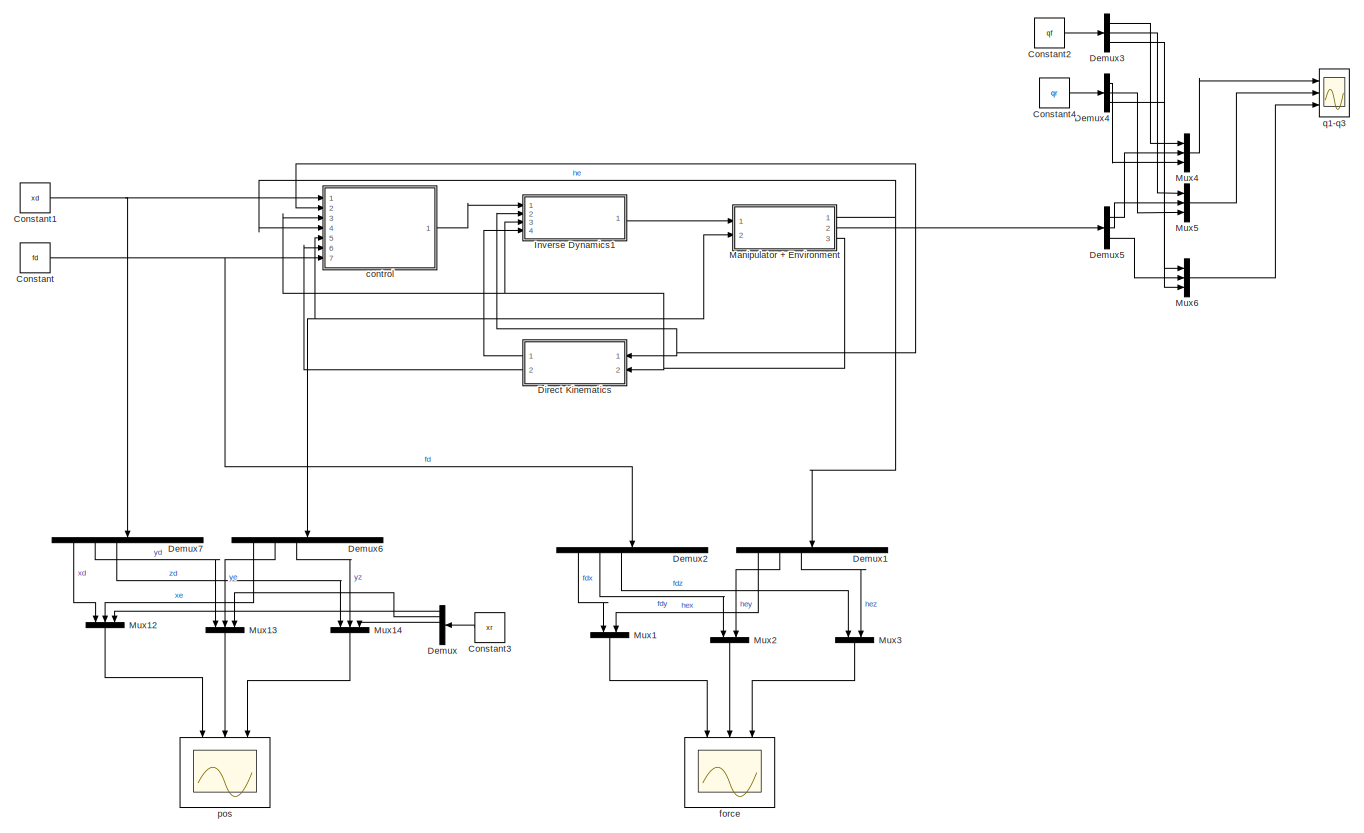
[diagram: root canvas - part 1/1, most of the canvas]
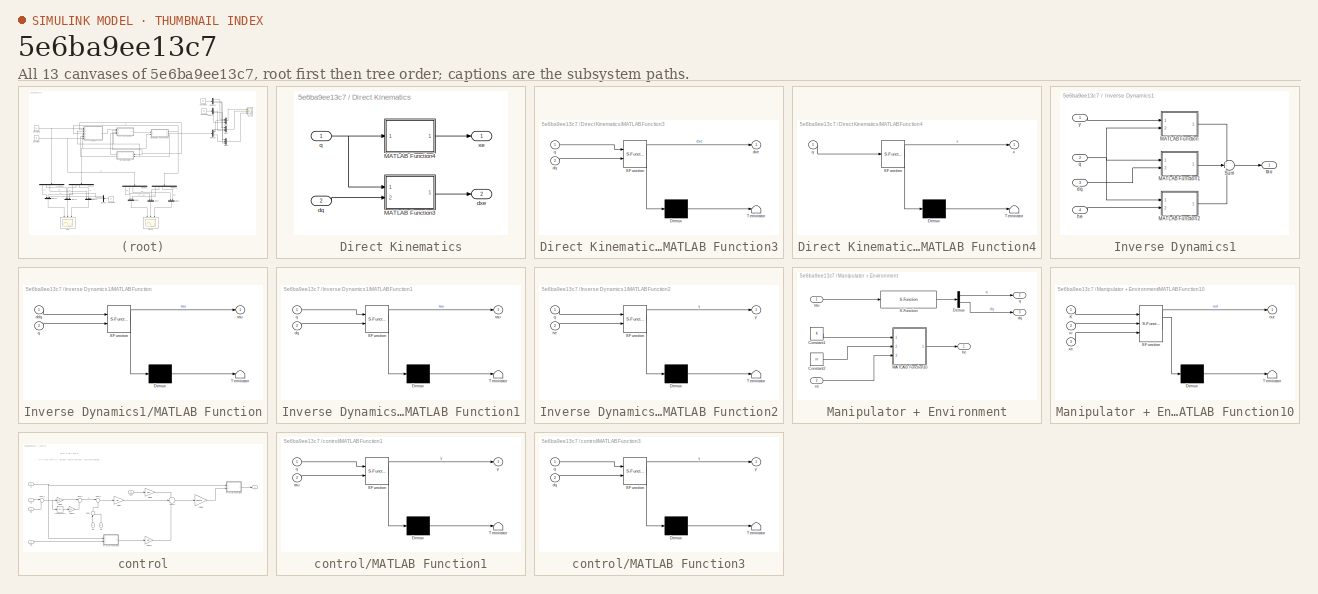
[diagram: thumbnail index - all 13 canvases of the model, root first then tree order]
MODEL slx_5e6ba9ee13c7
KIND model
CONFIG AbsTol = auto
CONFIG EnableMultiTasking = off
CONFIG FixedStep = Ts
CONFIG MaxStep = auto
CONFIG MinStep = auto
CONFIG RelTol = 1e-3
CONFIG SampleTimeConstraint = Unconstrained
CONFIG SolverName = FixedStepAuto
CONFIG StartTime = 0.0
CONFIG StopTime = 10
BLOCK [Constant] Constant
  Value = fd
BLOCK [Constant] Constant1
  Value = xd
BLOCK [Constant] Constant2
  Value = qf
BLOCK [Constant] Constant3
  NameLocation = top
  Value = xr
BLOCK [Constant] Constant4
  Value = qr
BLOCK [Demux] Demux
  NameLocation = top
  Outputs = 6
  Ports = [1, 6]
BLOCK [Demux] Demux1
  NameLocation = left
  Outputs = 6
  Ports = [1, 6]
BLOCK [Demux] Demux2
  NameLocation = left
  Outputs = 6
  Ports = [1, 6]
BLOCK [Demux] Demux3
  Outputs = 3
  Ports = [1, 3]
BLOCK [Demux] Demux4
  Outputs = 3
  Ports = [1, 3]
BLOCK [Demux] Demux5
  Outputs = myRobot.N
  Ports = [1, 3]
BLOCK [Demux] Demux6
  NameLocation = left
  Outputs = 6
  Ports = [1, 6]
BLOCK [Demux] Demux7
  NameLocation = left
  Outputs = 6
  Ports = [1, 6]
BLOCK [SubSystem] Direct Kinematics
  Ports = [2, 2]
  RequestExecContextInheritance = off
BLOCK [SubSystem] Direct Kinematics/MATLAB Function3
  ErrorFcn = Stateflow.Translate.translate
  PermitHierarchicalResolution = ExplicitOnly
  Ports = [2, 1]
  RequestExecContextInheritance = off
  SFBlockType = MATLAB Function
  TreatAsAtomicUnit = on
BLOCK [Demux] Direct Kinematics/MATLAB Function3/ Demux 
  Outputs = 1
  Ports = [1, 1]
BLOCK [S-Function] Direct Kinematics/MATLAB Function3/ SFunction 
  EnableBusSupport = on
  FunctionName = sf_sfun
  PortCounts = [2 2]
  Ports = [2, 2]
  SFcnIsStateOwnerBlock = off
  SFunctionDeploymentMode = off
  Tag = Stateflow S-Function 10
BLOCK [Terminator] Direct Kinematics/MATLAB Function3/ Terminator 
BLOCK [Inport] Direct Kinematics/MATLAB Function3/dq
  Port = 2
BLOCK [Outport] Direct Kinematics/MATLAB Function3/dxe
BLOCK [Inport] Direct Kinematics/MATLAB Function3/q
BLOCK [SubSystem] Direct Kinematics/MATLAB Function4
  ErrorFcn = Stateflow.Translate.translate
  PermitHierarchicalResolution = ExplicitOnly
  Ports = [1, 1]
  RequestExecContextInheritance = off
  SFBlockType = MATLAB Function
  TreatAsAtomicUnit = on
BLOCK [Demux] Direct Kinematics/MATLAB Function4/ Demux 
  Outputs = 1
  Ports = [1, 1]
BLOCK [S-Function] Direct Kinematics/MATLAB Function4/ SFunction 
  EnableBusSupport = on
  FunctionName = sf_sfun
  PortCounts = [1 2]
  Ports = [1, 2]
  SFcnIsStateOwnerBlock = off
  SFunctionDeploymentMode = off
  Tag = Stateflow S-Function 13
BLOCK [Terminator] Direct Kinematics/MATLAB Function4/ Terminator 
BLOCK [Inport] Direct Kinematics/MATLAB Function4/q
BLOCK [Outport] Direct Kinematics/MATLAB Function4/x
BLOCK [Inport] Direct Kinematics/dq
  Port = 2
BLOCK [Outport] Direct Kinematics/dxe
  Port = 2
BLOCK [Inport] Direct Kinematics/q
BLOCK [Outport] Direct Kinematics/xe
BLOCK [SubSystem] Inverse Dynamics1
  Ports = [4, 1]
  RequestExecContextInheritance = off
BLOCK [SubSystem] Inverse Dynamics1/MATLAB Function
  ErrorFcn = Stateflow.Translate.translate
  PermitHierarchicalResolution = ExplicitOnly
  Ports = [2, 1]
  RequestExecContextInheritance = off
  SFBlockType = MATLAB Function
  TreatAsAtomicUnit = on
BLOCK [Demux] Inverse Dynamics1/MATLAB Function/ Demux 
  Outputs = 1
  Ports = [1, 1]
BLOCK [S-Function] Inverse Dynamics1/MATLAB Function/ SFunction 
  EnableBusSupport = on
  FunctionName = sf_sfun
  PortCounts = [2 2]
  Ports = [2, 2]
  SFcnIsStateOwnerBlock = off
  SFunctionDeploymentMode = off
  Tag = Stateflow S-Function 18
BLOCK [Terminator] Inverse Dynamics1/MATLAB Function/ Terminator 
BLOCK [Inport] Inverse Dynamics1/MATLAB Function/ddq
BLOCK [Inport] Inverse Dynamics1/MATLAB Function/q
  Port = 2
BLOCK [Outport] Inverse Dynamics1/MATLAB Function/tau
BLOCK [SubSystem] Inverse Dynamics1/MATLAB Function1
  ErrorFcn = Stateflow.Translate.translate
  PermitHierarchicalResolution = ExplicitOnly
  Ports = [2, 1]
  RequestExecContextInheritance = off
  SFBlockType = MATLAB Function
  TreatAsAtomicUnit = on
BLOCK [Demux] Inverse Dynamics1/MATLAB Function1/ Demux 
  Outputs = 1
  Ports = [1, 1]
BLOCK [S-Function] Inverse Dynamics1/MATLAB Function1/ SFunction 
  EnableBusSupport = on
  FunctionName = sf_sfun
  PortCounts = [2 2]
  Ports = [2, 2]
  SFcnIsStateOwnerBlock = off
  SFunctionDeploymentMode = off
  Tag = Stateflow S-Function 19
BLOCK [Terminator] Inverse Dynamics1/MATLAB Function1/ Terminator 
BLOCK [Inport] Inverse Dynamics1/MATLAB Function1/dq
  Port = 2
BLOCK [Inport] Inverse Dynamics1/MATLAB Function1/q
BLOCK [Outport] Inverse Dynamics1/MATLAB Function1/tau
BLOCK [SubSystem] Inverse Dynamics1/MATLAB Function2
  ErrorFcn = Stateflow.Translate.translate
  PermitHierarchicalResolution = ExplicitOnly
  Ports = [2, 1]
  RequestExecContextInheritance = off
  SFBlockType = MATLAB Function
  TreatAsAtomicUnit = on
BLOCK [Demux] Inverse Dynamics1/MATLAB Function2/ Demux 
  Outputs = 1
  Ports = [1, 1]
BLOCK [S-Function] Inverse Dynamics1/MATLAB Function2/ SFunction 
  EnableBusSupport = on
  FunctionName = sf_sfun
  PortCounts = [2 2]
  Ports = [2, 2]
  SFcnIsStateOwnerBlock = off
  SFunctionDeploymentMode = off
  Tag = Stateflow S-Function 2
BLOCK [Terminator] Inverse Dynamics1/MATLAB Function2/ Terminator 
BLOCK [Inport] Inverse Dynamics1/MATLAB Function2/he
  Port = 2
BLOCK [Inport] Inverse Dynamics1/MATLAB Function2/q
BLOCK [Outport] Inverse Dynamics1/MATLAB Function2/y
BLOCK [Sum] Inverse Dynamics1/Sum
  Inputs = +++
  Ports = [3, 1]
BLOCK [Inport] Inverse Dynamics1/dq
  Port = 3
BLOCK [Inport] Inverse Dynamics1/he
  Port = 4
BLOCK [Inport] Inverse Dynamics1/q
  Port = 2
BLOCK [Outport] Inverse Dynamics1/tau
BLOCK [Inport] Inverse Dynamics1/y
BLOCK [SubSystem] Manipulator + Environment
  Ports = [2, 3]
  RequestExecContextInheritance = off
BLOCK [Constant] Manipulator + Environment/Constant1
  Value = K
BLOCK [Constant] Manipulator + Environment/Constant2
  Value = xr
BLOCK [Demux] Manipulator + Environment/Demux
  Outputs = 2
  Ports = [1, 2]
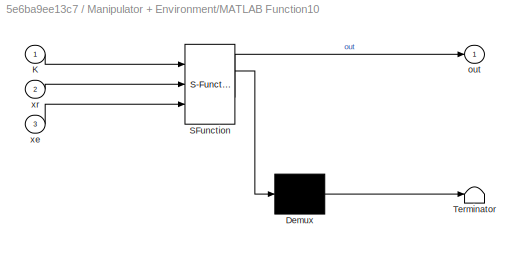
BLOCK [SubSystem] Manipulator + Environment/MATLAB Function10
  ErrorFcn = Stateflow.Translate.translate
  PermitHierarchicalResolution = ExplicitOnly
  Ports = [3, 1]
  RequestExecContextInheritance = off
  SFBlockType = MATLAB Function
  TreatAsAtomicUnit = on
BLOCK [Demux] Manipulator + Environment/MATLAB Function10/ Demux 
  Outputs = 1
  Ports = [1, 1]
BLOCK [S-Function] Manipulator + Environment/MATLAB Function10/ SFunction 
  EnableBusSupport = on
  FunctionName = sf_sfun
  PortCounts = [3 2]
  Ports = [3, 2]
  SFcnIsStateOwnerBlock = off
  SFunctionDeploymentMode = off
  Tag = Stateflow S-Function 20
BLOCK [Terminator] Manipulator + Environment/MATLAB Function10/ Terminator 
BLOCK [Inport] Manipulator + Environment/MATLAB Function10/K
BLOCK [Outport] Manipulator + Environment/MATLAB Function10/out
BLOCK [Inport] Manipulator + Environment/MATLAB Function10/xe
  Port = 3
BLOCK [Inport] Manipulator + Environment/MATLAB Function10/xr
  Port = 2
BLOCK [S-Function] Manipulator + Environment/S-Function
  EnableBusSupport = off
  FunctionName = fwd_dyn_joint_lagrangian
  Parameters = myRobot,qi,dqi
  Ports = [1, 1]
  SFcnIsStateOwnerBlock = off
  SFunctionDeploymentMode = off
BLOCK [Outport] Manipulator + Environment/dq
  Port = 3
BLOCK [Outport] Manipulator + Environment/he
BLOCK [Outport] Manipulator + Environment/q
  Port = 2
BLOCK [Inport] Manipulator + Environment/tau
BLOCK [Inport] Manipulator + Environment/xe
  Port = 2
BLOCK [Mux] Mux1
  DisplayOption = bar
  Inputs = 2
  NameLocation = left
  Ports = [2, 1]
BLOCK [Mux] Mux12
  DisplayOption = bar
  Inputs = 3
  NameLocation = left
  Ports = [3, 1]
BLOCK [Mux] Mux13
  DisplayOption = bar
  Inputs = 3
  NameLocation = left
  Ports = [3, 1]
BLOCK [Mux] Mux14
  DisplayOption = bar
  Inputs = 3
  NameLocation = left
  Ports = [3, 1]
BLOCK [Mux] Mux2
  DisplayOption = bar
  Inputs = 2
  NameLocation = left
  Ports = [2, 1]
BLOCK [Mux] Mux3
  DisplayOption = bar
  Inputs = 2
  NameLocation = left
  Ports = [2, 1]
BLOCK [Mux] Mux4
  DisplayOption = bar
  Inputs = 3
  Ports = [3, 1]
BLOCK [Mux] Mux5
  DisplayOption = bar
  Inputs = 3
  Ports = [3, 1]
BLOCK [Mux] Mux6
  DisplayOption = bar
  Inputs = 3
  Ports = [3, 1]
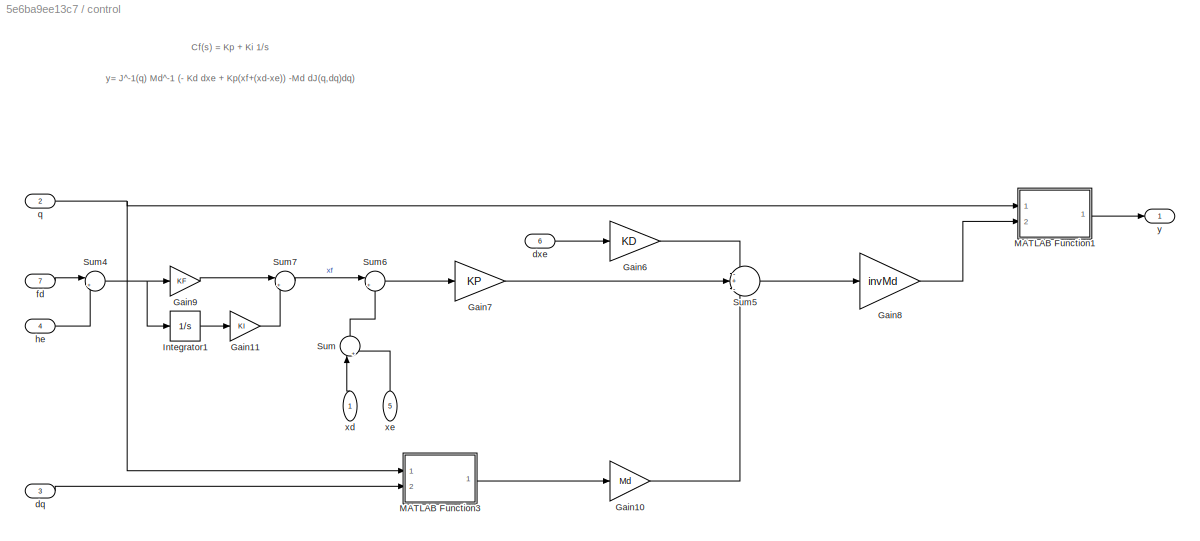
BLOCK [SubSystem] control
  Ports = [7, 1]
  RequestExecContextInheritance = off
BLOCK [Gain] control/Gain10
  Gain = Md
  Multiplication = Matrix(K*u)
BLOCK [Gain] control/Gain11
  Gain = KI
BLOCK [Gain] control/Gain6
  Gain = KD
BLOCK [Gain] control/Gain7
  Gain = KP
BLOCK [Gain] control/Gain8
  Gain = invMd
  Multiplication = Matrix(K*u)
BLOCK [Gain] control/Gain9
  Gain = KF
BLOCK [Integrator] control/Integrator1
  Ports = [1, 1]
BLOCK [SubSystem] control/MATLAB Function1
  ErrorFcn = Stateflow.Translate.translate
  PermitHierarchicalResolution = ExplicitOnly
  Ports = [2, 1]
  RequestExecContextInheritance = off
  SFBlockType = MATLAB Function
  TreatAsAtomicUnit = on
BLOCK [Demux] control/MATLAB Function1/ Demux 
  Outputs = 1
  Ports = [1, 1]
BLOCK [S-Function] control/MATLAB Function1/ SFunction 
  EnableBusSupport = on
  FunctionName = sf_sfun
  PortCounts = [2 2]
  Ports = [2, 2]
  SFcnIsStateOwnerBlock = off
  SFunctionDeploymentMode = off
  Tag = Stateflow S-Function 4
BLOCK [Terminator] control/MATLAB Function1/ Terminator 
BLOCK [Inport] control/MATLAB Function1/q
BLOCK [Inport] control/MATLAB Function1/tau
  Port = 2
BLOCK [Outport] control/MATLAB Function1/y
BLOCK [SubSystem] control/MATLAB Function3
  ErrorFcn = Stateflow.Translate.translate
  PermitHierarchicalResolution = ExplicitOnly
  Ports = [2, 1]
  RequestExecContextInheritance = off
  SFBlockType = MATLAB Function
  TreatAsAtomicUnit = on
BLOCK [Demux] control/MATLAB Function3/ Demux 
  Outputs = 1
  Ports = [1, 1]
BLOCK [S-Function] control/MATLAB Function3/ SFunction 
  EnableBusSupport = on
  FunctionName = sf_sfun
  PortCounts = [2 2]
  Ports = [2, 2]
  SFcnIsStateOwnerBlock = off
  SFunctionDeploymentMode = off
  Tag = Stateflow S-Function 5
BLOCK [Terminator] control/MATLAB Function3/ Terminator 
BLOCK [Inport] control/MATLAB Function3/dq
  Port = 2
BLOCK [Inport] control/MATLAB Function3/q
BLOCK [Outport] control/MATLAB Function3/y
BLOCK [Sum] control/Sum
  Inputs = |+-
  NameLocation = right
  Ports = [2, 1]
BLOCK [Sum] control/Sum4
  Inputs = |+-
  Ports = [2, 1]
BLOCK [Sum] control/Sum5
  Inputs = -+-
  Ports = [3, 1]
BLOCK [Sum] control/Sum6
  Inputs = |++
  Ports = [2, 1]
BLOCK [Sum] control/Sum7
  Inputs = |++
  Ports = [2, 1]
BLOCK [Inport] control/dq
  Port = 3
BLOCK [Inport] control/dxe
  Port = 6
BLOCK [Inport] control/fd
  Port = 7
BLOCK [Inport] control/he
  NameLocation = top
  Port = 4
BLOCK [Inport] control/q
  Port = 2
BLOCK [Inport] control/xd
  NameLocation = right
BLOCK [Inport] control/xe
  NameLocation = right
  Port = 5
BLOCK [Outport] control/y
BLOCK [Scope] force
  Floating = off
  NameLocation = left
  NumInputPorts = 3
  Ports = [3]
  ScopeSpecificationString = Simulink.scopes.TimeScopeBlockCfg('CurrentConfiguration', extmgr.ConfigurationSet(extmgr.Configuration('Core','General UI',true),extmgr.Configuration('Core','Source UI',true),extmgr.Configuration('Sources','WiredSimulink',true,'DataLoggingVariableName','ScopeData1'),extmgr.Configuration('Visuals','Time Domain',true,'SerializedDisplays',{struct('MinYLimReal','-0.00841','MaxYLimReal','0.00093','YLab...<+3361ch>
BLOCK [Scope] pos
  Floating = off
  NameLocation = left
  NumInputPorts = 3
  Ports = [3]
  ScopeSpecificationString = Simulink.scopes.TimeScopeBlockCfg('CurrentConfiguration', extmgr.ConfigurationSet(extmgr.Configuration('Core','General UI',true),extmgr.Configuration('Core','Source UI',true),extmgr.Configuration('Sources','WiredSimulink',true,'DataLoggingVariableName','ScopeData1'),extmgr.Configuration('Visuals','Time Domain',true,'SerializedDisplays',{struct('MinYLimReal','0.37','MaxYLimReal','0.67','YLabelReal'...<+3403ch>
BLOCK [Scope] q1-q3
  Floating = off
  NumInputPorts = 3
  Ports = [3]
  ScopeSpecificationString = Simulink.scopes.TimeScopeBlockCfg('CurrentConfiguration', extmgr.ConfigurationSet(extmgr.Configuration('Core','General UI',true),extmgr.Configuration('Core','Source UI',true),extmgr.Configuration('Sources','WiredSimulink',true,'DataLoggingVariableName','ScopeData1'),extmgr.Configuration('Visuals','Time Domain',true,'SerializedDisplays',{struct('MinYLimReal','-0.06315','MaxYLimReal','0.56836','YLab...<+2985ch>
ANNOTATION control: Cf(s) = Kp + Ki 1/s
ANNOTATION control: y= J^-1(q) Md^-1 ( - Kd dxe + Kp( xf +(xd-xe) ) -Md dJ(q,dq)dq )
NET Constant1:1 -> Demux7:1, control:1
LINE Constant2:1 -> Demux3:1
LINE Constant3:1 -> Demux:1
LINE Constant4:1 -> Demux4:1
NET Constant:1 -> Demux2:1, control:7
LINE Demux1:1 -> Mux1:2
LINE Demux1:2 -> Mux2:2
LINE Demux1:3 -> Mux3:2
LINE Demux2:1 -> Mux1:1
LINE Demux2:2 -> Mux2:1
LINE Demux2:3 -> Mux3:1
LINE Demux3:1 -> Mux4:1
LINE Demux3:2 -> Mux5:1
LINE Demux3:3 -> Mux6:1
LINE Demux4:1 -> Mux4:3
LINE Demux4:2 -> Mux5:3
LINE Demux4:3 -> Mux6:3
LINE Demux5:1 -> Mux4:2
LINE Demux5:2 -> Mux5:2
LINE Demux5:3 -> Mux6:2
LINE Demux6:1 -> Mux12:2
LINE Demux6:2 -> Mux13:2
LINE Demux6:3 -> Mux14:2
LINE Demux7:1 -> Mux12:1
LINE Demux7:2 -> Mux13:1
LINE Demux7:3 -> Mux14:1
LINE Demux:1 -> Mux12:3
LINE Demux:2 -> Mux13:3
LINE Demux:3 -> Mux14:3
LINE Direct Kinematics/MATLAB Function3:1 -> Direct Kinematics/dxe:1
LINE Direct Kinematics/MATLAB Function4:1 -> Direct Kinematics/xe:1
LINE Direct Kinematics/dq:1 -> Direct Kinematics/MATLAB Function3:2
NET Direct Kinematics/q:1 -> Direct Kinematics/MATLAB Function3:1, Direct Kinematics/MATLAB Function4:1
NET Direct Kinematics:1 -> Demux6:1, Inverse Dynamics1:4, Manipulator + Environment:2, control:5
LINE Direct Kinematics:2 -> control:6
LINE Inverse Dynamics1/MATLAB Function1:1 -> Inverse Dynamics1/Sum:2
LINE Inverse Dynamics1/MATLAB Function2:1 -> Inverse Dynamics1/Sum:3
LINE Inverse Dynamics1/MATLAB Function:1 -> Inverse Dynamics1/Sum:1
LINE Inverse Dynamics1/Sum:1 -> Inverse Dynamics1/tau:1
LINE Inverse Dynamics1/dq:1 -> Inverse Dynamics1/MATLAB Function1:2
LINE Inverse Dynamics1/he:1 -> Inverse Dynamics1/MATLAB Function2:2
NET Inverse Dynamics1/q:1 -> Inverse Dynamics1/MATLAB Function1:1, Inverse Dynamics1/MATLAB Function2:1, Inverse Dynamics1/MATLAB Function:2
LINE Inverse Dynamics1/y:1 -> Inverse Dynamics1/MATLAB Function:1
LINE Inverse Dynamics1:1 -> Manipulator + Environment:1
LINE Manipulator + Environment/Constant1:1 -> Manipulator + Environment/MATLAB Function10:1
LINE Manipulator + Environment/Constant2:1 -> Manipulator + Environment/MATLAB Function10:2
LINE Manipulator + Environment/Demux:1 -> Manipulator + Environment/q:1
LINE Manipulator + Environment/Demux:2 -> Manipulator + Environment/dq:1
LINE Manipulator + Environment/MATLAB Function10:1 -> Manipulator + Environment/he:1
LINE Manipulator + Environment/S-Function:1 -> Manipulator + Environment/Demux:1
LINE Manipulator + Environment/tau:1 -> Manipulator + Environment/S-Function:1
LINE Manipulator + Environment/xe:1 -> Manipulator + Environment/MATLAB Function10:3
NET Manipulator + Environment:1 -> Demux1:1, control:4
NET Manipulator + Environment:2 -> Demux5:1, Direct Kinematics:1, Inverse Dynamics1:2, control:2
NET Manipulator + Environment:3 -> Direct Kinematics:2, Inverse Dynamics1:3, control:3
LINE Mux12:1 -> pos:1
LINE Mux13:1 -> pos:2
LINE Mux14:1 -> pos:3
LINE Mux1:1 -> force:1
LINE Mux2:1 -> force:2
LINE Mux3:1 -> force:3
LINE Mux4:1 -> q1-q3:1
LINE Mux5:1 -> q1-q3:2
LINE Mux6:1 -> q1-q3:3
LINE control/Gain10:1 -> control/Sum5:3
LINE control/Gain11:1 -> control/Sum7:2
LINE control/Gain6:1 -> control/Sum5:1
LINE control/Gain7:1 -> control/Sum5:2
LINE control/Gain8:1 -> control/MATLAB Function1:2
LINE control/Gain9:1 -> control/Sum7:1
LINE control/Integrator1:1 -> control/Gain11:1
LINE control/MATLAB Function1:1 -> control/y:1
LINE control/MATLAB Function3:1 -> control/Gain10:1
NET control/Sum4:1 -> control/Gain9:1, control/Integrator1:1
LINE control/Sum5:1 -> control/Gain8:1
LINE control/Sum6:1 -> control/Gain7:1
LINE control/Sum7:1 -> control/Sum6:1
LINE control/Sum:1 -> control/Sum6:2
LINE control/dq:1 -> control/MATLAB Function3:2
LINE control/dxe:1 -> control/Gain6:1
LINE control/fd:1 -> control/Sum4:1
LINE control/he:1 -> control/Sum4:2
NET control/q:1 -> control/MATLAB Function1:1, control/MATLAB Function3:1
LINE control/xd:1 -> control/Sum:1
LINE control/xe:1 -> control/Sum:2
LINE control:1 -> Inverse Dynamics1:1
note: NET lines group one-source signal fan-out (src -> all destinations, sorted); 1:1 wires keep LINE
CHART Inverse Dynamics1/MATLAB Function2 states=1 transitions=1
  STATE_LABEL 'eML_blk_kernel()'
  STATE_LABEL "SCRIPT:\nfunction y = fcn(q, he)\ny = getJ(q)'*he;\n"
CHART control/MATLAB Function1 states=1 transitions=1
  STATE_LABEL 'eML_blk_kernel()'
  STATE_LABEL 'SCRIPT:\nfunction y = invJ(q, tau)\n\ny = getInvJ(q)*tau;\n'
CHART control/MATLAB Function3 states=1 transitions=1
  STATE_LABEL 'eML_blk_kernel()'
  STATE_LABEL 'SCRIPT:\nfunction y = dJa(q, dq)\n\ny = getDiffJa(q,dq)*dq;\n'
CHART Direct Kinematics/MATLAB Function3 states=1 transitions=1
  STATE_LABEL 'eML_blk_kernel()'
  STATE_LABEL 'SCRIPT:\nfunction dxe = Ja(q, dq)\n\ndxe = getJa(q)*dq;\n'
CHART Direct Kinematics/MATLAB Function4 states=1 transitions=1
  STATE_LABEL 'eML_blk_kernel()'
  STATE_LABEL 'SCRIPT:\nfunction x = k(q)\n\nx = getK(q);\n'
CHART Inverse Dynamics1/MATLAB Function states=1 transitions=1
  STATE_LABEL 'eML_blk_kernel()'
  STATE_LABEL 'SCRIPT:\nfunction tau = B(ddq, q)\n\ntau = getB(q)*ddq;\n'
CHART Inverse Dynamics1/MATLAB Function1 states=1 transitions=1
  STATE_LABEL 'eML_blk_kernel()'
  STATE_LABEL 'SCRIPT:\nfunction tau = n(q, dq)\n\ntau = getN(q, dq);\n'
CHART Manipulator + Environment/MATLAB Function10 states=1 transitions=1
  STATE_LABEL 'eML_blk_kernel()'
  STATE_LABEL 'SCRIPT:\nfunction out = hde(K,xr, xe)\n%consider the interaction only in z direction\nif xe(3) < xr(3) \n    out = K*(xe-xr);\nelse \n    out = zeros(6,1);\nend\n'
CHART  states=0 transitions=0
CHART  states=0 transitions=0
CHART  states=0 transitions=0
CHART  states=0 transitions=0
CHART  states=0 transitions=0
CHART  states=0 transitions=0
CHART  states=0 transitions=0
CHART  states=0 transitions=0
